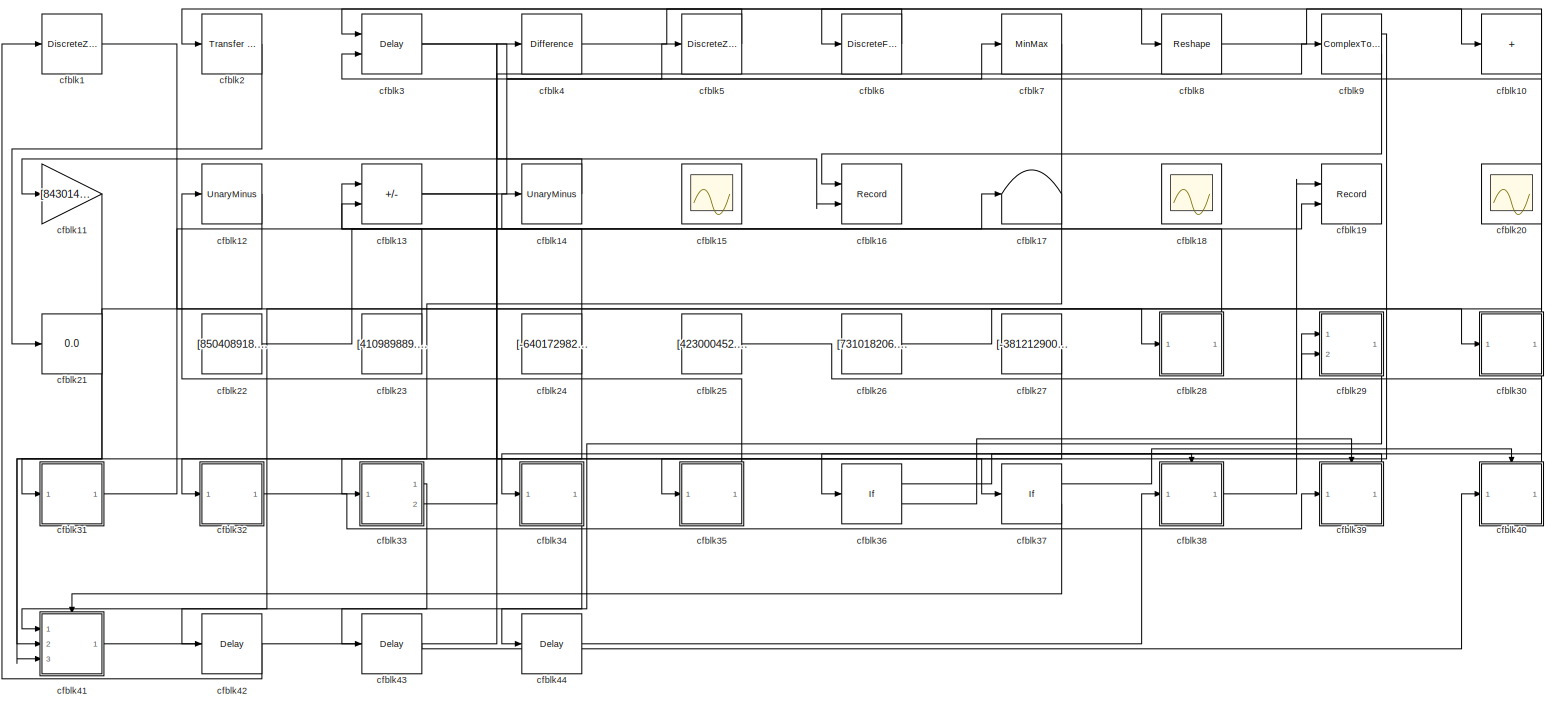
[diagram: root canvas - part 1/1, most of the canvas]
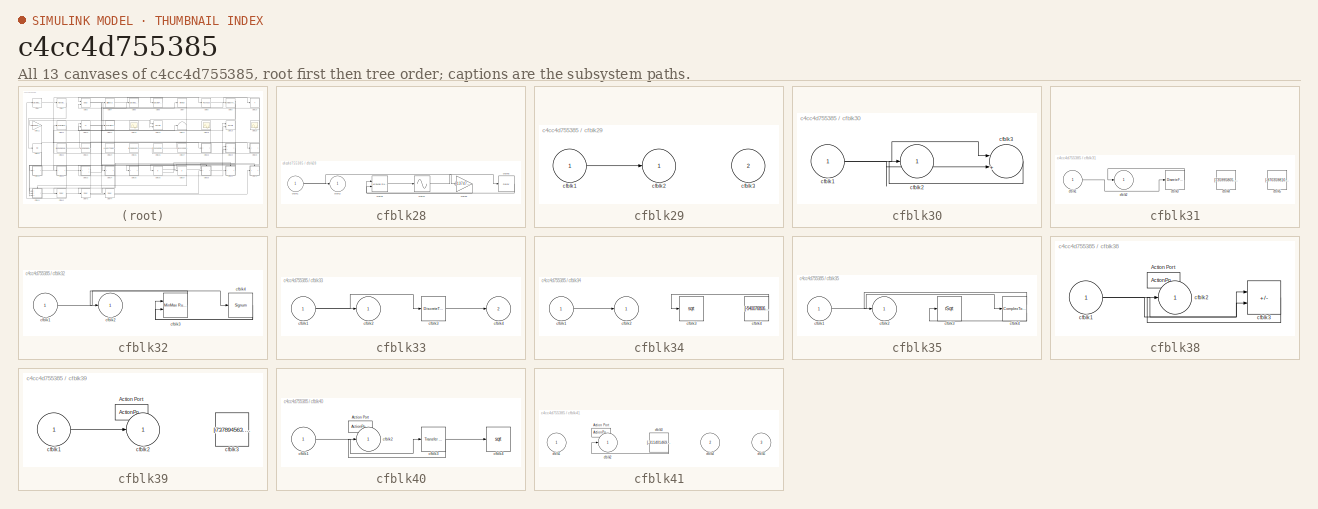
[diagram: thumbnail index - all 13 canvases of the model, root first then tree order]
MODEL slx_c4cc4d755385
KIND model
CONFIG AbsTol = auto
CONFIG EnableMultiTasking = off
CONFIG FixedStep = auto
CONFIG MaxStep = auto
CONFIG MinStep = auto
CONFIG RelTol = 1e-3
CONFIG SampleTimeConstraint = Unconstrained
CONFIG SolverName = VariableStepAuto
CONFIG StartTime = 0.0
CONFIG StopTime = 10.0
BLOCK [DiscreteZeroPole] cfblk1
  Gain = 1
  Poles = [0 0.5]
BLOCK [Sum] cfblk10
  IconShape = rectangular
  Inputs = +
  Ports = [1, 1]
BLOCK [Gain] cfblk11
  Gain = [843014008.914896]
BLOCK [UnaryMinus] cfblk12
BLOCK [Sum] cfblk13
  IconShape = rectangular
  Inputs = +-
  Ports = [2, 1]
BLOCK [UnaryMinus] cfblk14
BLOCK [Scope] cfblk15
  Floating = on
  NumInputPorts = 1
  Ports = []
BLOCK [Record] cfblk16
  CompatibilityTag = XY
  FileSettingsInternal = {"entries":[{"content":{"excelSettings":{"content":{},"type":"Streamout.ExcelSettings"}},"type":"Streamout.FileSettingStorage","uuid":"cca10b2c-9729-4ca0-a785-db39cad9df5a"}],"packageUris":["http://schema.mathworks.com/mf0/streamout_blocks/R2020a"],"version":"1.0"}
  Layout = [1 1]
  Ports = [2]
  SignalsInternal = {"entries":[{"content":{"signals":[{"content":{"blockPath":["sampleModel229/cfblk16"],"channel":[],"dimensions":[1],"domain":"sampleModel229/cfblk16","lineColor":"#a2142f","plots":[1],"port":1,"sid":[""],"signalID":8953,"signalName":"cfblk9:2"},"type":"RecordBlkView.Signal","uuid":"820c6719-806d-41ff-95bb-78ca30542d26"},{"content":{"blockPath":["sampleModel229/cfblk16"],"channel":[],"dimensions":[...<+383ch>
  VisualizationBindings = {"xyplotplugin":{"info":[{"series":[{"bindingParametersList":[{"parameter":"X-Axis","signalID":8953,"signalName":"cfblk9:2"},{"parameter":"Y-Axis","signalID":8957,"signalName":"cfblk3"}],"seriesID":25820}],"subplotID":1}]}}
BLOCK [Terminator] cfblk17
BLOCK [Scope] cfblk18
  Floating = on
  NumInputPorts = 1
  Ports = []
BLOCK [Record] cfblk19
  CompatibilityTag = XY
  FileSettingsInternal = {"entries":[{"content":{"excelSettings":{"content":{},"type":"Streamout.ExcelSettings"}},"type":"Streamout.FileSettingStorage","uuid":"69774671-d197-4a5b-883d-2b0e15201338"}],"packageUris":["http://schema.mathworks.com/mf0/streamout_blocks/R2020a"],"version":"1.0"}
  Layout = [1 1]
  Ports = [2]
  SignalsInternal = {"entries":[{"content":{"signals":[{"content":{"blockPath":["sampleModel229/cfblk19"],"channel":[],"dimensions":[1],"domain":"sampleModel229/cfblk19","lineColor":"#a2142f","plots":[1],"port":1,"sid":[""],"signalID":8961,"signalName":"cfblk38"},"type":"RecordBlkView.Signal","uuid":"76b91beb-2131-4cc8-8d98-00c31025ee17"},{"content":{"blockPath":["sampleModel229/cfblk19"],"channel":[],"dimensions":[1...<+383ch>
  VisualizationBindings = {"xyplotplugin":{"info":[{"series":[{"bindingParametersList":[{"parameter":"X-Axis","signalID":8961,"signalName":"cfblk38"},{"parameter":"Y-Axis","signalID":8965,"signalName":"cfblk31"}],"seriesID":19951}],"subplotID":1}]}}
BLOCK [Reference] cfblk2  REF=simulink/Discrete/Transfer Fcn
First Order
  Ports = [1, 1]
  SourceBlock = simulink/Discrete/Transfer Fcn\nFirst Order
  SourceProductBaseCode = SL
  SourceType = First Order Transfer Fcn
BLOCK [Scope] cfblk20
  Floating = on
  NumInputPorts = 1
  Ports = []
BLOCK [Display] cfblk21
  Decimation = 1
  Ports = [1]
BLOCK [Constant] cfblk22
  SampleTime = 1
  Value = [850408918.279754]
BLOCK [Constant] cfblk23
  SampleTime = 1
  Value = [410989889.265742]
BLOCK [Constant] cfblk24
  SampleTime = 1
  Value = [-640172982.762325]
BLOCK [Constant] cfblk25
  SampleTime = 1
  Value = [423000452.164834]
BLOCK [Constant] cfblk26
  SampleTime = 1
  Value = [731018206.745896]
BLOCK [Constant] cfblk27
  SampleTime = 1
  Value = [-381212900.018538]
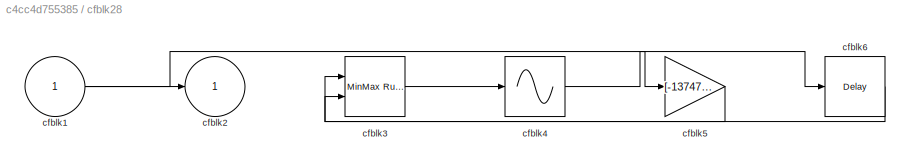
BLOCK [SubSystem] cfblk28
  Ports = [1, 1]
  RequestExecContextInheritance = off
BLOCK [Inport] cfblk28/cfblk1
BLOCK [Outport] cfblk28/cfblk2
BLOCK [Reference] cfblk28/cfblk3  REF=simulink/Math
Operations/MinMax
Running
Resettable
  Ports = [2, 1]
  SourceBlock = simulink/Math\nOperations/MinMax\nRunning\nResettable
  SourceProductBaseCode = SL
  SourceType = MinMax Running Resettable
BLOCK [Sin] cfblk28/cfblk4
  Ports = [1, 1]
  SampleTime = 0
  TimeSource = Use external signal
BLOCK [Gain] cfblk28/cfblk5
  Gain = [-137474424.597479]
BLOCK [Delay] cfblk28/cfblk6
  InputPortMap = u0
  Ports = [1, 1]
  SampleTime = 1
BLOCK [SubSystem] cfblk29
  Ports = [2, 1]
  RequestExecContextInheritance = off
BLOCK [Inport] cfblk29/cfblk1
BLOCK [Outport] cfblk29/cfblk2
BLOCK [Inport] cfblk29/cfblk3
  Port = 2
BLOCK [Delay] cfblk3
  InputPortMap = u0,e6
  Ports = [2, 1]
  SampleTime = 1
  ShowEnablePort = on
BLOCK [SubSystem] cfblk30
  Ports = [1, 1]
  RequestExecContextInheritance = off
BLOCK [Inport] cfblk30/cfblk1
BLOCK [Outport] cfblk30/cfblk2
BLOCK [Sum] cfblk30/cfblk3
  Inputs = |++
  Ports = [2, 1]
BLOCK [SubSystem] cfblk31
  Ports = [1, 1]
  RequestExecContextInheritance = off
BLOCK [Inport] cfblk31/cfblk1
BLOCK [Outport] cfblk31/cfblk2
BLOCK [DiscreteFilter] cfblk31/cfblk3
  InputPortMap = u0
  Ports = [1, 1]
  SampleTime = 1
BLOCK [Constant] cfblk31/cfblk4
  SampleTime = 1
  Value = [735995805.589938]
BLOCK [Constant] cfblk31/cfblk5
  SampleTime = 1
  Value = [-970359810.276811]
BLOCK [SubSystem] cfblk32
  Ports = [1, 1]
  RequestExecContextInheritance = off
BLOCK [Inport] cfblk32/cfblk1
BLOCK [Outport] cfblk32/cfblk2
BLOCK [Reference] cfblk32/cfblk3  REF=simulink/Math
Operations/MinMax
Running
Resettable
  Ports = [2, 1]
  SourceBlock = simulink/Math\nOperations/MinMax\nRunning\nResettable
  SourceProductBaseCode = SL
  SourceType = MinMax Running Resettable
BLOCK [Signum] cfblk32/cfblk4
BLOCK [SubSystem] cfblk33
  Ports = [1, 2]
  RequestExecContextInheritance = off
BLOCK [Inport] cfblk33/cfblk1
BLOCK [Outport] cfblk33/cfblk2
BLOCK [DiscreteTransferFcn] cfblk33/cfblk3
  InputPortMap = u0
  Ports = [1, 1]
  SampleTime = 1
BLOCK [Outport] cfblk33/cfblk4
  Port = 2
BLOCK [SubSystem] cfblk34
  Ports = [1, 1]
  RequestExecContextInheritance = off
BLOCK [Inport] cfblk34/cfblk1
BLOCK [Outport] cfblk34/cfblk2
BLOCK [Sqrt] cfblk34/cfblk3
BLOCK [Constant] cfblk34/cfblk4
  SampleTime = 1
  Value = [-540076806.919898]
BLOCK [SubSystem] cfblk35
  Ports = [1, 1]
  RequestExecContextInheritance = off
BLOCK [Inport] cfblk35/cfblk1
BLOCK [Outport] cfblk35/cfblk2
BLOCK [Sqrt] cfblk35/cfblk3
  AlgorithmType = Newton-Raphson
  Operator = rSqrt
BLOCK [ComplexToMagnitudeAngle] cfblk35/cfblk4
  Ports = [1, 2]
BLOCK [If] cfblk36
  IfExpression = u1 >= 0
  Ports = [1, 2]
  SampleTime = 1
BLOCK [If] cfblk37
  IfExpression = u1 >= 0
  Ports = [1, 2]
  SampleTime = 1
BLOCK [SubSystem] cfblk38
  Ports = [1, 1, 0, 0, 0, 0, 0, 1]
  RequestExecContextInheritance = off
  TreatAsAtomicUnit = on
BLOCK [ActionPort] cfblk38/Action Port
  ActionPortLabel = if(u1 >= 0)
BLOCK [Inport] cfblk38/cfblk1
BLOCK [Outport] cfblk38/cfblk2
BLOCK [Sum] cfblk38/cfblk3
  IconShape = rectangular
  Inputs = +-
  Ports = [2, 1]
BLOCK [SubSystem] cfblk39
  Ports = [1, 1, 0, 0, 0, 0, 0, 1]
  RequestExecContextInheritance = off
  TreatAsAtomicUnit = on
BLOCK [ActionPort] cfblk39/Action Port
  ActionPortLabel = else
BLOCK [Inport] cfblk39/cfblk1
BLOCK [Outport] cfblk39/cfblk2
BLOCK [Constant] cfblk39/cfblk3
  SampleTime = 1
  Value = [737894563.234864]
BLOCK [Reference] cfblk4  REF=simulink/Discrete/Difference
  Ports = [1, 1]
  SourceBlock = simulink/Discrete/Difference
  SourceProductBaseCode = SL
  SourceType = Difference
BLOCK [SubSystem] cfblk40
  Ports = [1, 1, 0, 0, 0, 0, 0, 1]
  RequestExecContextInheritance = off
  TreatAsAtomicUnit = on
BLOCK [ActionPort] cfblk40/Action Port
  ActionPortLabel = if(u1 >= 0)
BLOCK [Inport] cfblk40/cfblk1
BLOCK [Outport] cfblk40/cfblk2
BLOCK [Reference] cfblk40/cfblk3  REF=simulink/Discrete/Transfer Fcn
Real Zero
  Ports = [1, 1]
  SourceBlock = simulink/Discrete/Transfer Fcn\nReal Zero
  SourceProductBaseCode = SL
  SourceType = Transfer Fcn Real Zero
BLOCK [Sqrt] cfblk40/cfblk4
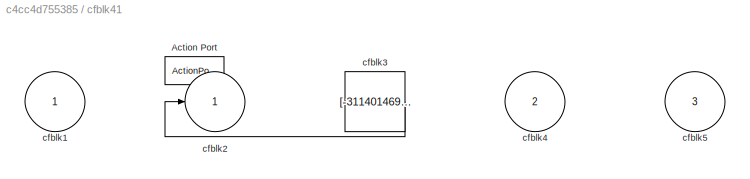
BLOCK [SubSystem] cfblk41
  Ports = [3, 1, 0, 0, 0, 0, 0, 1]
  RequestExecContextInheritance = off
  TreatAsAtomicUnit = on
BLOCK [ActionPort] cfblk41/Action Port
  ActionPortLabel = else
BLOCK [Inport] cfblk41/cfblk1
BLOCK [Outport] cfblk41/cfblk2
BLOCK [Constant] cfblk41/cfblk3
  SampleTime = 1
  Value = [-311401469.073815]
BLOCK [Inport] cfblk41/cfblk4
  Port = 2
BLOCK [Inport] cfblk41/cfblk5
  Port = 3
BLOCK [Delay] cfblk42
  InputPortMap = u0
  Ports = [1, 1]
  SampleTime = 1
BLOCK [Delay] cfblk43
  InputPortMap = u0
  Ports = [1, 1]
  SampleTime = 1
BLOCK [Delay] cfblk44
  InputPortMap = u0
  Ports = [1, 1]
  SampleTime = 1
BLOCK [DiscreteZeroPole] cfblk5
  Gain = 1
  Poles = [0 0.5]
BLOCK [DiscreteFir] cfblk6
  InputPortMap = u0
  OutputPortMap = o0
  Ports = [1, 1]
  SampleTime = 1
BLOCK [MinMax] cfblk7
  Ports = [1, 1]
BLOCK [Reshape] cfblk8
  Ports = [1, 1]
BLOCK [ComplexToRealImag] cfblk9
  Ports = [1, 2]
NET cfblk10:1 -> cfblk42:1, cfblk6:1
LINE cfblk11:1 -> cfblk41:2
LINE cfblk12:1 -> cfblk31:1
NET cfblk13:1 -> cfblk37:1, cfblk5:1
LINE cfblk14:1 -> cfblk11:1
LINE cfblk1:1 -> cfblk28:1
LINE cfblk22:1 -> cfblk17:1
LINE cfblk23:1 -> cfblk13:1
NET cfblk24:1 -> cfblk13:2, cfblk41:3
LINE cfblk25:1 -> cfblk29:2
LINE cfblk26:1 -> cfblk30:1
LINE cfblk27:1 -> cfblk33:1
NET cfblk28/cfblk1:1 -> cfblk28/cfblk2:1, cfblk28/cfblk5:1
LINE cfblk28/cfblk3:1 -> cfblk28/cfblk4:1
LINE cfblk28/cfblk4:1 -> cfblk28/cfblk6:1
LINE cfblk28/cfblk5:1 -> cfblk28/cfblk3:1
LINE cfblk28/cfblk6:1 -> cfblk28/cfblk3:2
LINE cfblk28:1 -> cfblk14:1
LINE cfblk29/cfblk1:1 -> cfblk29/cfblk2:1
LINE cfblk29:1 -> cfblk44:1
LINE cfblk2:1 -> cfblk21:1
NET cfblk30/cfblk1:1 -> cfblk30/cfblk3:1, cfblk30/cfblk3:2
LINE cfblk30/cfblk3:1 -> cfblk30/cfblk2:1
NET cfblk30:1 -> cfblk36:1, cfblk3:2
LINE cfblk31/cfblk1:1 -> cfblk31/cfblk3:1
LINE cfblk31/cfblk3:1 -> cfblk31/cfblk2:1
LINE cfblk31:1 -> cfblk19:2
LINE cfblk32/cfblk1:1 -> cfblk32/cfblk4:1
LINE cfblk32/cfblk3:1 -> cfblk32/cfblk2:1
NET cfblk32/cfblk4:1 -> cfblk32/cfblk3:1, cfblk32/cfblk3:2
LINE cfblk32:1 -> cfblk39:1
NET cfblk33/cfblk1:1 -> cfblk33/cfblk2:1, cfblk33/cfblk3:1
LINE cfblk33/cfblk3:1 -> cfblk33/cfblk4:1
LINE cfblk33:1 -> cfblk41:1
LINE cfblk33:2 -> cfblk9:1
LINE cfblk34/cfblk1:1 -> cfblk34/cfblk2:1
LINE cfblk34/cfblk4:1 -> cfblk34/cfblk3:1
LINE cfblk34:1 -> cfblk43:1
LINE cfblk35/cfblk1:1 -> cfblk35/cfblk4:1
LINE cfblk35/cfblk4:1 -> cfblk35/cfblk2:1
LINE cfblk35/cfblk4:2 -> cfblk35/cfblk3:1
LINE cfblk35:1 -> cfblk12:1
LINE cfblk36:1 -> cfblk38:ifaction
LINE cfblk36:2 -> cfblk39:ifaction
LINE cfblk37:1 -> cfblk40:ifaction
LINE cfblk37:2 -> cfblk41:ifaction
NET cfblk38/cfblk1:1 -> cfblk38/cfblk3:1, cfblk38/cfblk3:2
LINE cfblk38/cfblk3:1 -> cfblk38/cfblk2:1
LINE cfblk38:1 -> cfblk19:1
LINE cfblk39/cfblk1:1 -> cfblk39/cfblk2:1
LINE cfblk39:1 -> cfblk34:1
NET cfblk3:1 -> cfblk16:2, cfblk7:1
LINE cfblk40/cfblk1:1 -> cfblk40/cfblk3:1
NET cfblk40/cfblk3:1 -> cfblk40/cfblk2:1, cfblk40/cfblk4:1
LINE cfblk40:1 -> cfblk29:1
LINE cfblk41/cfblk3:1 -> cfblk41/cfblk2:1
LINE cfblk41:1 -> cfblk4:1
LINE cfblk42:1 -> cfblk1:1
LINE cfblk43:1 -> cfblk40:1
LINE cfblk44:1 -> cfblk38:1
LINE cfblk4:1 -> cfblk8:1
LINE cfblk5:1 -> cfblk2:1
LINE cfblk6:1 -> cfblk3:1
LINE cfblk7:1 -> cfblk32:1
LINE cfblk8:1 -> cfblk10:1
LINE cfblk9:1 -> cfblk35:1
LINE cfblk9:2 -> cfblk16:1
note: NET lines group one-source signal fan-out (src -> all destinations, sorted); 1:1 wires keep LINE
